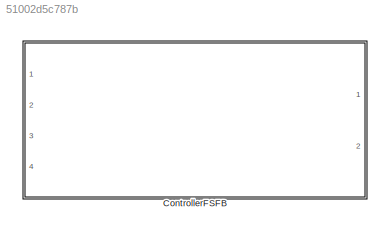
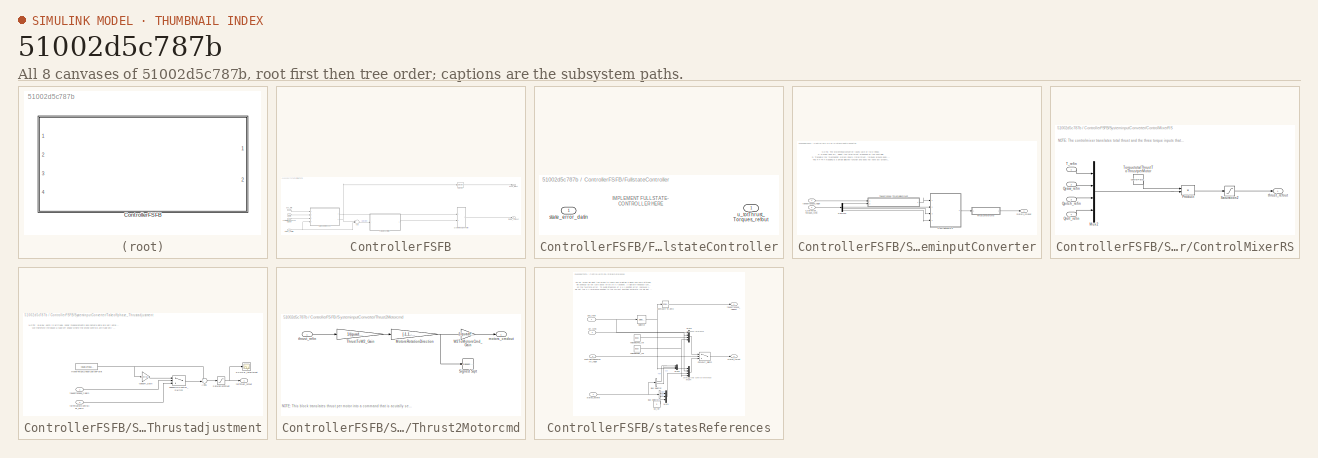
[diagram: thumbnail index - all 8 canvases of the model, root first then tree order]
MODEL slx_51002d5c787b
KIND model
CONFIG AbsTol = auto
CONFIG FixedStep = sampleTime_qcsim
CONFIG InitFcn = % load parameters of the default quadrotor\ndisp('Quadrotor parameters loaded by InitFcn')\nparamsControl %load mdl_quadcopter as well!
CONFIG MaxStep = 0.1
CONFIG MinStep = auto
CONFIG RelTol = 1e-3
CONFIG SampleTimeConstraint = Unconstrained
CONFIG Solver = ode3
CONFIG SolverMode = Auto
CONFIG SolverName = ode3
CONFIG StartTime = 0
CONFIG StopTime = inf
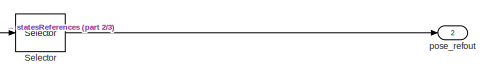
[diagram: ControllerFSFB - part 1/3, top right region]
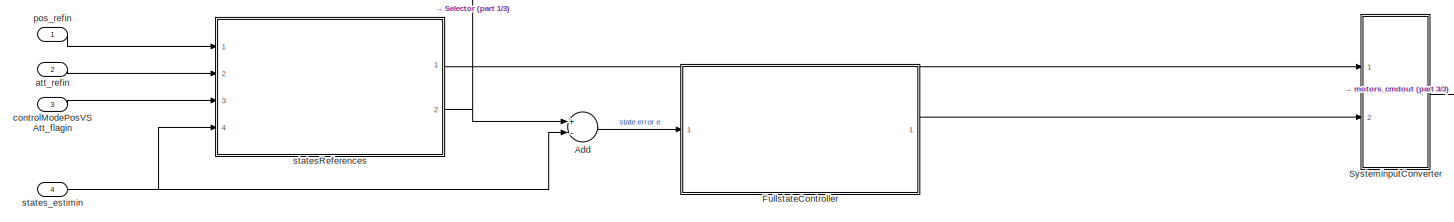
[diagram: ControllerFSFB - part 2/3, full width, bottom band]
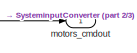
[diagram: ControllerFSFB - part 3/3, bottom right region]
BLOCK [SubSystem] ControllerFSFB
  Ports = [4, 2]
  RTWSystemCode = Reusable function
  RequestExecContextInheritance = off
  TreatAsAtomicUnit = on
BLOCK [Sum] ControllerFSFB/Add
  InputSameDT = off
  Inputs = +-
  OutDataTypeStr = Inherit: Inherit via internal rule
  Ports = [2, 1]
  SaturateOnIntegerOverflow = off
BLOCK [SubSystem] ControllerFSFB/FullstateController
  Ports = [1, 1]
  RequestExecContextInheritance = off
BLOCK [Inport] ControllerFSFB/FullstateController/state_error_datin
  IconDisplay = Port number
BLOCK [Outport] ControllerFSFB/FullstateController/u_totThrust_Torques_refout
  IconDisplay = Port number
BLOCK [Selector] ControllerFSFB/Selector
  Indices = [1:6]
  InputPortWidth = 12
  Ports = [1, 1]
BLOCK [SubSystem] ControllerFSFB/SysteminputConverter
  Ports = [2, 1]
  RequestExecContextInheritance = off
BLOCK [SubSystem] ControllerFSFB/SysteminputConverter/ControlMixerRS
  Ports = [4, 1]
  RequestExecContextInheritance = off
BLOCK [Mux] ControllerFSFB/SysteminputConverter/ControlMixerRS/Mux2
  DisplayOption = bar
  Ports = [4, 1]
BLOCK [Product] ControllerFSFB/SysteminputConverter/ControlMixerRS/Product
  InputSameDT = off
  Multiplication = Matrix(*)
  OutDataTypeStr = Inherit: Inherit via internal rule
  Ports = [2, 1]
  SaturateOnIntegerOverflow = off
BLOCK [Inport] ControllerFSFB/SysteminputConverter/ControlMixerRS/Qpitch_refin
  IconDisplay = Port number
  Port = 3
BLOCK [Inport] ControllerFSFB/SysteminputConverter/ControlMixerRS/Qroll_refin
  IconDisplay = Port number
  Port = 4
BLOCK [Inport] ControllerFSFB/SysteminputConverter/ControlMixerRS/Qyaw_refin
  IconDisplay = Port number
  Port = 2
BLOCK [Saturate] ControllerFSFB/SysteminputConverter/ControlMixerRS/Saturation2
  InputPortMap = u0
  LowerLimit = -0.3235
  Ports = [1, 1]
  UpperLimit = -0.0118
BLOCK [Inport] ControllerFSFB/SysteminputConverter/ControlMixerRS/T_refin
  IconDisplay = Port number
BLOCK [Constant] ControllerFSFB/SysteminputConverter/ControlMixerRS/TorquetotalThrustToThrustperMotor
  Value = controlParams.Q2Ts
BLOCK [Outport] ControllerFSFB/SysteminputConverter/ControlMixerRS/thrust_refout
  IconDisplay = Port number
BLOCK [Demux] ControllerFSFB/SysteminputConverter/Demux3
  DisplayOption = bar
  Ports = [1, 4]
BLOCK [SubSystem] ControllerFSFB/SysteminputConverter/Takeoffphase_Thrustadjustment
  Ports = [2, 1]
  RequestExecContextInheritance = off
BLOCK [Sum] ControllerFSFB/SysteminputConverter/Takeoffphase_Thrustadjustment/Add1
  IconShape = round
  InputSameDT = off
  Inputs = ++|
  OutDataTypeStr = Inherit: Inherit via internal rule
  Ports = [2, 1]
  SaturateOnIntegerOverflow = off
BLOCK [Constant] ControllerFSFB/SysteminputConverter/Takeoffphase_Thrustadjustment/HoverThrustLinearizationPoint
  Value = -quad.g*quad.M
BLOCK [Scope] ControllerFSFB/SysteminputConverter/Takeoffphase_Thrustadjustment/SCOPE_totalthrust 
  Floating = off
  NumInputPorts = 1
  Ports = [1]
  ZoomMode = yonly
BLOCK [Saturate] ControllerFSFB/SysteminputConverter/Takeoffphase_Thrustadjustment/SaturationThrust
  InputPortMap = u0
  LowerLimit = -(controlParams.totalThrust_maxRelative*controlParams.motorsThrust_i_UpperLimit*4)
  Ports = [1, 1]
  UpperLimit = controlParams.totalThrust_maxRelative*controlParams.motorsThrust_i_UpperLimit*4
BLOCK [Switch] ControllerFSFB/SysteminputConverter/Takeoffphase_Thrustadjustment/TakeoffOrControl_Switch
  Criteria = u2 > Threshold
  InputSameDT = off
  SaturateOnIntegerOverflow = off
BLOCK [Gain] ControllerFSFB/SysteminputConverter/Takeoffphase_Thrustadjustment/takeoff_Gain
  Gain = controlParams.takeoff_Gain
  OutDataTypeStr = Inherit: Inherit via internal rule
  ParamDataTypeStr = Inherit: Inherit via internal rule
  SaturateOnIntegerOverflow = off
BLOCK [Inport] ControllerFSFB/SysteminputConverter/Takeoffphase_Thrustadjustment/takeoffphase_flagin
  IconDisplay = Port number
BLOCK [Outport] ControllerFSFB/SysteminputConverter/Takeoffphase_Thrustadjustment/totThrust_refout
  IconDisplay = Port number
BLOCK [Inport] ControllerFSFB/SysteminputConverter/Takeoffphase_Thrustadjustment/totThrustbyController_refin
  IconDisplay = Port number
  Port = 2
BLOCK [SubSystem] ControllerFSFB/SysteminputConverter/Thrust2Motorcmd
  Ports = [1, 1]
  RequestExecContextInheritance = off
BLOCK [Gain] ControllerFSFB/SysteminputConverter/Thrust2Motorcmd/MotorsRotationDirection
  Gain = [-1,1,-1,1]
  OutDataTypeStr = Inherit: Inherit via internal rule
  ParamDataTypeStr = Inherit: Inherit via internal rule
  SaturateOnIntegerOverflow = off
BLOCK [Sqrt] ControllerFSFB/SysteminputConverter/Thrust2Motorcmd/Signed Sqrt
  Operator = signedSqrt
BLOCK [Gain] ControllerFSFB/SysteminputConverter/Thrust2Motorcmd/ThrustToW2_Gain
  Gain = 1/(quad.Ct*quad.rho*quad.A*quad.r^2)
  OutDataTypeStr = Inherit: Inherit via internal rule
  ParamDataTypeStr = Inherit: Inherit via internal rule
  SaturateOnIntegerOverflow = off
BLOCK [Gain] ControllerFSFB/SysteminputConverter/Thrust2Motorcmd/W2ToMotorsCmd_Gain
  Gain = 1/quadEDT.motorsRSToW2_Gain
  OutDataTypeStr = Inherit: Inherit via internal rule
  ParamDataTypeStr = Inherit: Inherit via internal rule
  SaturateOnIntegerOverflow = off
BLOCK [Outport] ControllerFSFB/SysteminputConverter/Thrust2Motorcmd/motors_cmdout
  IconDisplay = Port number
BLOCK [Inport] ControllerFSFB/SysteminputConverter/Thrust2Motorcmd/thrust_refin
  IconDisplay = Port number
BLOCK [Outport] ControllerFSFB/SysteminputConverter/motors_cmdout
  IconDisplay = Port number
BLOCK [Inport] ControllerFSFB/SysteminputConverter/takeoffphase_flagin
  IconDisplay = Port number
BLOCK [Inport] ControllerFSFB/SysteminputConverter/u_totThrust_Torques_refin
  IconDisplay = Port number
  Port = 2
BLOCK [Inport] ControllerFSFB/att_refin
  IconDisplay = Port number
  Port = 2
BLOCK [Inport] ControllerFSFB/controlModePosVSAtt_flagin
  IconDisplay = Port number
  Port = 3
BLOCK [Outport] ControllerFSFB/motors_cmdout
  IconDisplay = Port number
BLOCK [Inport] ControllerFSFB/pos_refin
  IconDisplay = Port number
BLOCK [Outport] ControllerFSFB/pose_refout
  IconDisplay = Port number
  Port = 2
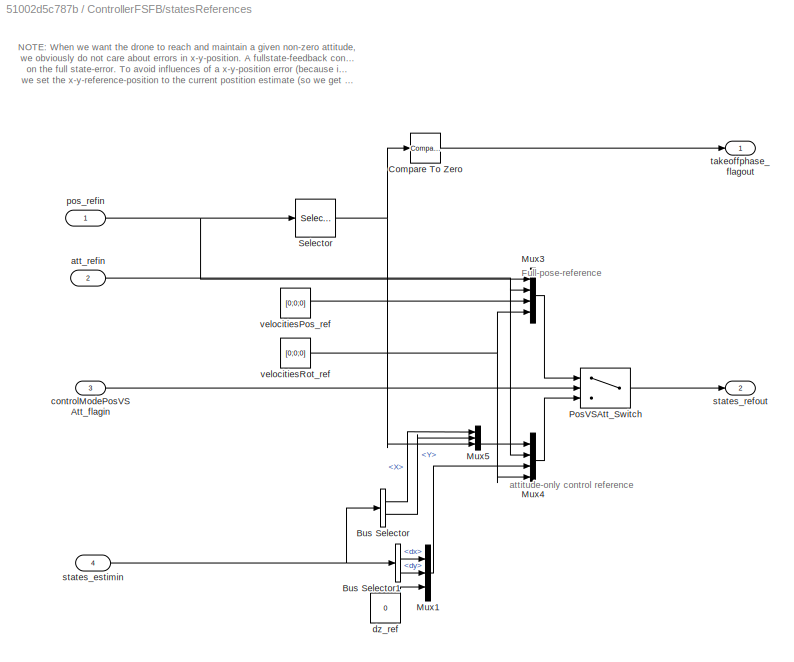
BLOCK [SubSystem] ControllerFSFB/statesReferences
  Ports = [4, 2]
  RequestExecContextInheritance = off
BLOCK [BusSelector] ControllerFSFB/statesReferences/Bus Selector
  OutputSignals = X,Y
  Ports = [1, 2]
BLOCK [BusSelector] ControllerFSFB/statesReferences/Bus Selector1
  OutputSignals = dx,dy
  Ports = [1, 2]
BLOCK [Reference] ControllerFSFB/statesReferences/Compare To Zero  REF=simulink/Logic and Bit
Operations/Compare
To Zero
  OutDataTypeStr = boolean
  Ports = [1, 1]
  SourceBlock = simulink/Logic and Bit\nOperations/Compare\nTo Zero
  SourceType = Compare To Zero
  ZeroCross = on
  relop = >
BLOCK [Mux] ControllerFSFB/statesReferences/Mux1
  DisplayOption = bar
  Inputs = 3
  Ports = [3, 1]
BLOCK [Mux] ControllerFSFB/statesReferences/Mux3
  DisplayOption = bar
  Ports = [4, 1]
BLOCK [Mux] ControllerFSFB/statesReferences/Mux4
  DisplayOption = bar
  Ports = [4, 1]
BLOCK [Mux] ControllerFSFB/statesReferences/Mux5
  DisplayOption = bar
  Inputs = 3
  Ports = [3, 1]
BLOCK [Switch] ControllerFSFB/statesReferences/PosVSAtt_Switch
  Criteria = u2 > Threshold
  InputSameDT = off
  SaturateOnIntegerOverflow = off
BLOCK [Selector] ControllerFSFB/statesReferences/Selector
  Indices = [3]
  InputPortWidth = 3
  Ports = [1, 1]
BLOCK [Inport] ControllerFSFB/statesReferences/att_refin
  IconDisplay = Port number
  Port = 2
BLOCK [Inport] ControllerFSFB/statesReferences/controlModePosVSAtt_flagin
  IconDisplay = Port number
  Port = 3
BLOCK [Constant] ControllerFSFB/statesReferences/dz_ref
  Value = 0
BLOCK [Inport] ControllerFSFB/statesReferences/pos_refin
  IconDisplay = Port number
BLOCK [Inport] ControllerFSFB/statesReferences/states_estimin
  IconDisplay = Port number
  Port = 4
BLOCK [Outport] ControllerFSFB/statesReferences/states_refout
  IconDisplay = Port number
  Port = 2
BLOCK [Outport] ControllerFSFB/statesReferences/takeoffphase_flagout
  IconDisplay = Port number
BLOCK [Constant] ControllerFSFB/statesReferences/velocitiesPos_ref
  Value = [0;0;0]
BLOCK [Constant] ControllerFSFB/statesReferences/velocitiesRot_ref
  Value = [0;0;0]
BLOCK [Inport] ControllerFSFB/states_estimin
  IconDisplay = Port number
  Port = 4
ANNOTATION ControllerFSFB/FullstateController: IMPLEMENT FULLSTATE- CONTROLLER HERE
ANNOTATION ControllerFSFB/SysteminputConverter: NOTE: The Systeminputconverter takes care of two things: 1) During take off, adjust the total thrust proposed by the controller 2) Translate the "mechanical" system inputs (total thrust, torques around body-frame x-y-z-axes) to actual motor commands. This R4->R4 mapping is a simple bijective function and does not have any dynamics. This allows us to design the controller with more intuitive "mecha...<+90ch>
ANNOTATION ControllerFSFB/SysteminputConverter/ControlMixerRS: NOTE: The controlmixer translates total thrust and the three torque inputs that the controller came up with into 'thrust per motor'.
ANNOTATION ControllerFSFB/SysteminputConverter/Takeoffphase_Thrustadjustment: NOTE: Below 40cm in altitude, sonar measurements and camera data are very unreliable. We therefore introduce a take-off phase where the drone controls attitude only and runs an uncontrolled total thrust of takeofff_Gain/100 % above equilibrium thrust.
ANNOTATION ControllerFSFB/SysteminputConverter/Thrust2Motorcmd: NOTE: This block translates thrust per motor into a command that is acutally send to the motors.
ANNOTATION ControllerFSFB/statesReferences: NOTE: When we want the drone to reach and maintain a given non-zero attitude, we obviously do not care about errors in x-y-position . A fullstate-feedback controller, however, acts on the full state-error. To avoid influences of a x-y-position error (because in attitude-only-control we don't care about it), we set the x-y-reference-position to the current postition estimate (so we get a zero "x-y-...<+17ch>
ANNOTATION ControllerFSFB/statesReferences: Full-pose-reference
ANNOTATION ControllerFSFB/statesReferences: attitude-only control reference
LINE ControllerFSFB/Add:1 -> ControllerFSFB/FullstateController:1
LINE ControllerFSFB/FullstateController:1 -> ControllerFSFB/SysteminputConverter:2
LINE ControllerFSFB/Selector:1 -> ControllerFSFB/pose_refout:1
LINE ControllerFSFB/SysteminputConverter/ControlMixerRS/Mux2:1 -> ControllerFSFB/SysteminputConverter/ControlMixerRS/Product:2
LINE ControllerFSFB/SysteminputConverter/ControlMixerRS/Product:1 -> ControllerFSFB/SysteminputConverter/ControlMixerRS/Saturation2:1
LINE ControllerFSFB/SysteminputConverter/ControlMixerRS/Qpitch_refin:1 -> ControllerFSFB/SysteminputConverter/ControlMixerRS/Mux2:3
LINE ControllerFSFB/SysteminputConverter/ControlMixerRS/Qroll_refin:1 -> ControllerFSFB/SysteminputConverter/ControlMixerRS/Mux2:4
LINE ControllerFSFB/SysteminputConverter/ControlMixerRS/Qyaw_refin:1 -> ControllerFSFB/SysteminputConverter/ControlMixerRS/Mux2:2
LINE ControllerFSFB/SysteminputConverter/ControlMixerRS/Saturation2:1 -> ControllerFSFB/SysteminputConverter/ControlMixerRS/thrust_refout:1
LINE ControllerFSFB/SysteminputConverter/ControlMixerRS/T_refin:1 -> ControllerFSFB/SysteminputConverter/ControlMixerRS/Mux2:1
LINE ControllerFSFB/SysteminputConverter/ControlMixerRS/TorquetotalThrustToThrustperMotor:1 -> ControllerFSFB/SysteminputConverter/ControlMixerRS/Product:1
LINE ControllerFSFB/SysteminputConverter/ControlMixerRS:1 -> ControllerFSFB/SysteminputConverter/Thrust2Motorcmd:1
LINE ControllerFSFB/SysteminputConverter/Demux3:1 -> ControllerFSFB/SysteminputConverter/Takeoffphase_Thrustadjustment:2
LINE ControllerFSFB/SysteminputConverter/Demux3:2 -> ControllerFSFB/SysteminputConverter/ControlMixerRS:2
LINE ControllerFSFB/SysteminputConverter/Demux3:3 -> ControllerFSFB/SysteminputConverter/ControlMixerRS:3
LINE ControllerFSFB/SysteminputConverter/Demux3:4 -> ControllerFSFB/SysteminputConverter/ControlMixerRS:4
LINE ControllerFSFB/SysteminputConverter/Takeoffphase_Thrustadjustment/Add1:1 -> ControllerFSFB/SysteminputConverter/Takeoffphase_Thrustadjustment/SaturationThrust:1
NET ControllerFSFB/SysteminputConverter/Takeoffphase_Thrustadjustment/HoverThrustLinearizationPoint:1 -> ControllerFSFB/SysteminputConverter/Takeoffphase_Thrustadjustment/Add1:1, ControllerFSFB/SysteminputConverter/Takeoffphase_Thrustadjustment/takeoff_Gain:1
NET ControllerFSFB/SysteminputConverter/Takeoffphase_Thrustadjustment/SaturationThrust:1 -> ControllerFSFB/SysteminputConverter/Takeoffphase_Thrustadjustment/SCOPE_totalthrust :1, ControllerFSFB/SysteminputConverter/Takeoffphase_Thrustadjustment/totThrust_refout:1
LINE ControllerFSFB/SysteminputConverter/Takeoffphase_Thrustadjustment/TakeoffOrControl_Switch:1 -> ControllerFSFB/SysteminputConverter/Takeoffphase_Thrustadjustment/Add1:2
LINE ControllerFSFB/SysteminputConverter/Takeoffphase_Thrustadjustment/takeoff_Gain:1 -> ControllerFSFB/SysteminputConverter/Takeoffphase_Thrustadjustment/TakeoffOrControl_Switch:1
LINE ControllerFSFB/SysteminputConverter/Takeoffphase_Thrustadjustment/takeoffphase_flagin:1 -> ControllerFSFB/SysteminputConverter/Takeoffphase_Thrustadjustment/TakeoffOrControl_Switch:2
LINE ControllerFSFB/SysteminputConverter/Takeoffphase_Thrustadjustment/totThrustbyController_refin:1 -> ControllerFSFB/SysteminputConverter/Takeoffphase_Thrustadjustment/TakeoffOrControl_Switch:3
LINE ControllerFSFB/SysteminputConverter/Takeoffphase_Thrustadjustment:1 -> ControllerFSFB/SysteminputConverter/ControlMixerRS:1
NET ControllerFSFB/SysteminputConverter/Thrust2Motorcmd/MotorsRotationDirection:1 -> ControllerFSFB/SysteminputConverter/Thrust2Motorcmd/Signed Sqrt:1, ControllerFSFB/SysteminputConverter/Thrust2Motorcmd/W2ToMotorsCmd_Gain:1
LINE ControllerFSFB/SysteminputConverter/Thrust2Motorcmd/ThrustToW2_Gain:1 -> ControllerFSFB/SysteminputConverter/Thrust2Motorcmd/MotorsRotationDirection:1
LINE ControllerFSFB/SysteminputConverter/Thrust2Motorcmd/W2ToMotorsCmd_Gain:1 -> ControllerFSFB/SysteminputConverter/Thrust2Motorcmd/motors_cmdout:1
LINE ControllerFSFB/SysteminputConverter/Thrust2Motorcmd/thrust_refin:1 -> ControllerFSFB/SysteminputConverter/Thrust2Motorcmd/ThrustToW2_Gain:1
LINE ControllerFSFB/SysteminputConverter/Thrust2Motorcmd:1 -> ControllerFSFB/SysteminputConverter/motors_cmdout:1
LINE ControllerFSFB/SysteminputConverter/takeoffphase_flagin:1 -> ControllerFSFB/SysteminputConverter/Takeoffphase_Thrustadjustment:1
LINE ControllerFSFB/SysteminputConverter/u_totThrust_Torques_refin:1 -> ControllerFSFB/SysteminputConverter/Demux3:1
LINE ControllerFSFB/SysteminputConverter:1 -> ControllerFSFB/motors_cmdout:1
LINE ControllerFSFB/att_refin:1 -> ControllerFSFB/statesReferences:2
LINE ControllerFSFB/controlModePosVSAtt_flagin:1 -> ControllerFSFB/statesReferences:3
LINE ControllerFSFB/pos_refin:1 -> ControllerFSFB/statesReferences:1
LINE ControllerFSFB/statesReferences/Bus Selector1:1 -> ControllerFSFB/statesReferences/Mux1:1
LINE ControllerFSFB/statesReferences/Bus Selector1:2 -> ControllerFSFB/statesReferences/Mux1:2
LINE ControllerFSFB/statesReferences/Bus Selector:1 -> ControllerFSFB/statesReferences/Mux5:1
LINE ControllerFSFB/statesReferences/Bus Selector:2 -> ControllerFSFB/statesReferences/Mux5:2
LINE ControllerFSFB/statesReferences/Compare To Zero:1 -> ControllerFSFB/statesReferences/takeoffphase_flagout:1
LINE ControllerFSFB/statesReferences/Mux1:1 -> ControllerFSFB/statesReferences/Mux4:3
LINE ControllerFSFB/statesReferences/Mux3:1 -> ControllerFSFB/statesReferences/PosVSAtt_Switch:1
LINE ControllerFSFB/statesReferences/Mux4:1 -> ControllerFSFB/statesReferences/PosVSAtt_Switch:3
LINE ControllerFSFB/statesReferences/Mux5:1 -> ControllerFSFB/statesReferences/Mux4:1
LINE ControllerFSFB/statesReferences/PosVSAtt_Switch:1 -> ControllerFSFB/statesReferences/states_refout:1
NET ControllerFSFB/statesReferences/Selector:1 -> ControllerFSFB/statesReferences/Compare To Zero:1, ControllerFSFB/statesReferences/Mux5:3
NET ControllerFSFB/statesReferences/att_refin:1 -> ControllerFSFB/statesReferences/Mux3:2, ControllerFSFB/statesReferences/Mux4:2
LINE ControllerFSFB/statesReferences/controlModePosVSAtt_flagin:1 -> ControllerFSFB/statesReferences/PosVSAtt_Switch:2
LINE ControllerFSFB/statesReferences/dz_ref:1 -> ControllerFSFB/statesReferences/Mux1:3
NET ControllerFSFB/statesReferences/pos_refin:1 -> ControllerFSFB/statesReferences/Mux3:1, ControllerFSFB/statesReferences/Selector:1
NET ControllerFSFB/statesReferences/states_estimin:1 -> ControllerFSFB/statesReferences/Bus Selector1:1, ControllerFSFB/statesReferences/Bus Selector:1
LINE ControllerFSFB/statesReferences/velocitiesPos_ref:1 -> ControllerFSFB/statesReferences/Mux3:3
NET ControllerFSFB/statesReferences/velocitiesRot_ref:1 -> ControllerFSFB/statesReferences/Mux3:4, ControllerFSFB/statesReferences/Mux4:4
LINE ControllerFSFB/statesReferences:1 -> ControllerFSFB/SysteminputConverter:1
NET ControllerFSFB/statesReferences:2 -> ControllerFSFB/Add:1, ControllerFSFB/Selector:1
NET ControllerFSFB/states_estimin:1 -> ControllerFSFB/Add:2, ControllerFSFB/statesReferences:4
note: NET lines group one-source signal fan-out (src -> all destinations, sorted); 1:1 wires keep LINE
